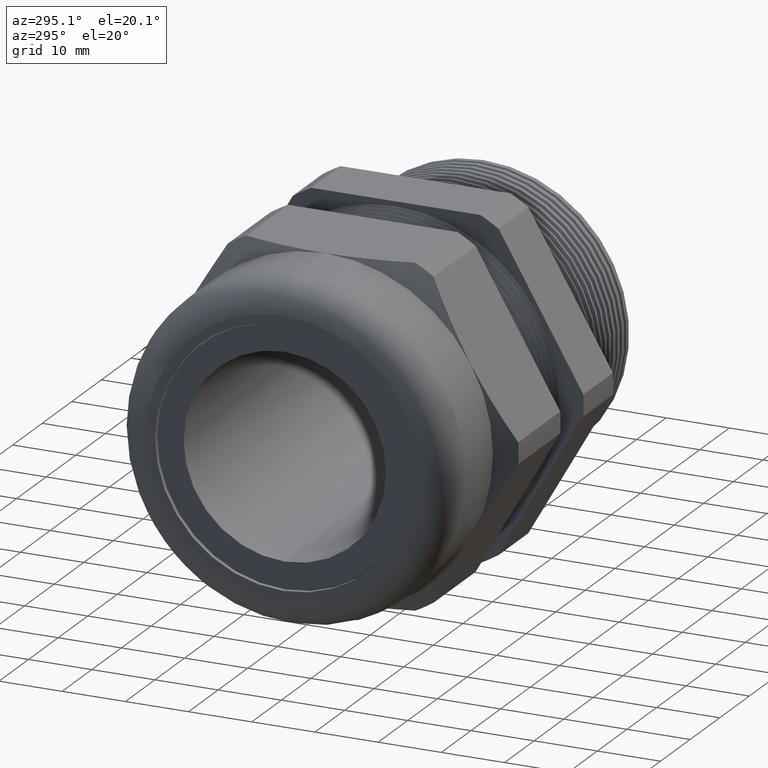
[diagram: clean part render]
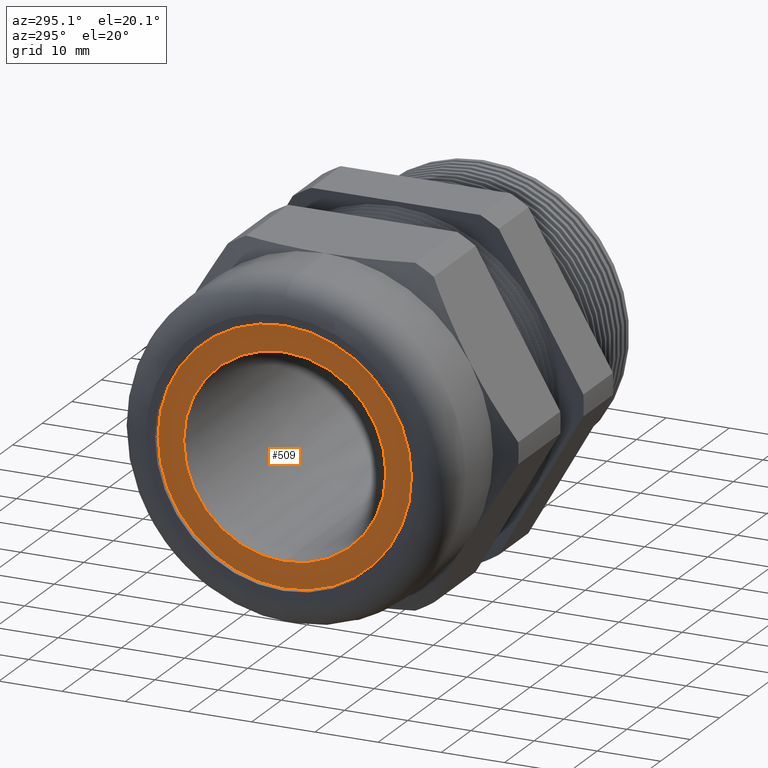
[diagram: same view with one face highlighted and labeled with its STEP entity id]
A machine part, auxiliary view. The second image highlights one B-rep face of the part: STEP entity #509.
In plain terms, the highlighted planar face has unit normal (-1, 0, 0).
Its self-contained STEP definition (entity closure, byte-faithful):
#353 = EDGE_LOOP ( 'NONE', ( #355, #359 ) ) ;
#355 = ORIENTED_EDGE ( 'NONE', *, *, #357, .T. ) ;
#357 = EDGE_CURVE ( 'NONE', #433, #432, #1970, .T. ) ;
#359 = ORIENTED_EDGE ( 'NONE', *, *, #431, .T. ) ;
#413 = EDGE_CURVE ( 'NONE', #429, #4475, #2079, .T. ) ;
#423 = ORIENTED_EDGE ( 'NONE', *, *, #413, .T. ) ;
#426 = ORIENTED_EDGE ( 'NONE', *, *, #428, .T. ) ;
#428 = EDGE_CURVE ( 'NONE', #4475, #429, #2062, .T. ) ;
#429 = VERTEX_POINT ( 'NONE', #2053 ) ;
#431 = EDGE_CURVE ( 'NONE', #432, #433, #2117, .T. ) ;
#432 = VERTEX_POINT ( 'NONE', #2112 ) ;
#433 = VERTEX_POINT ( 'NONE', #2111 ) ;
#509 = ADVANCED_FACE ( 'NONE', ( #2188, #2187 ), #2186, .T. ) ;
#510 = EDGE_LOOP ( 'NONE', ( #423, #426 ) ) ;
#1967 = DIRECTION ( 'NONE',  ( 0.0000000000000000000, 0.0000000000000000000, -1.000000000000000000 ) ) ;
#1968 = DIRECTION ( 'NONE',  ( 1.000000000000000000, 0.0000000000000000000, 0.0000000000000000000 ) ) ;
#1969 = AXIS2_PLACEMENT_3D ( 'NONE', #1974, #1968, #1967 ) ;
#1970 = CIRCLE ( 'NONE', #1969, 0.6300000000000000000 ) ;
#1974 = CARTESIAN_POINT ( 'NONE',  ( -1.869999999999999400, 0.0000000000000000000, 0.0000000000000000000 ) ) ;
#2053 = CARTESIAN_POINT ( 'NONE',  ( -1.869999999999999700, 0.0000000000000000000, 0.7889999999999998100 ) ) ;
#2054 = DIRECTION ( 'NONE',  ( 0.0000000000000000000, 0.0000000000000000000, 1.000000000000000000 ) ) ;
#2055 = DIRECTION ( 'NONE',  ( -1.000000000000000000, 0.0000000000000000000, 0.0000000000000000000 ) ) ;
#2056 = CARTESIAN_POINT ( 'NONE',  ( -1.869999999999999700, 0.0000000000000000000, 0.0000000000000000000 ) ) ;
#2057 = AXIS2_PLACEMENT_3D ( 'NONE', #2056, #2055, #2054 ) ;
#2062 = CIRCLE ( 'NONE', #2057, 0.7889999999999998100 ) ;
#2076 = DIRECTION ( 'NONE',  ( 0.0000000000000000000, 0.0000000000000000000, 1.000000000000000000 ) ) ;
#2077 = DIRECTION ( 'NONE',  ( -1.000000000000000000, 0.0000000000000000000, 0.0000000000000000000 ) ) ;
#2078 = AXIS2_PLACEMENT_3D ( 'NONE', #2083, #2077, #2076 ) ;
#2079 = CIRCLE ( 'NONE', #2078, 0.7889999999999998100 ) ;
#2083 = CARTESIAN_POINT ( 'NONE',  ( -1.869999999999999700, 0.0000000000000000000, 0.0000000000000000000 ) ) ;
#2111 = CARTESIAN_POINT ( 'NONE',  ( -1.869999999999999400, 0.0000000000000000000, -0.6300000000000000000 ) ) ;
#2112 = CARTESIAN_POINT ( 'NONE',  ( -1.869999999999999400, 7.715274834628325400E-017, 0.6300000000000000000 ) ) ;
#2113 = DIRECTION ( 'NONE',  ( 0.0000000000000000000, 0.0000000000000000000, -1.000000000000000000 ) ) ;
#2114 = DIRECTION ( 'NONE',  ( 1.000000000000000000, 0.0000000000000000000, 0.0000000000000000000 ) ) ;
#2115 = CARTESIAN_POINT ( 'NONE',  ( -1.869999999999999400, 0.0000000000000000000, 0.0000000000000000000 ) ) ;
#2116 = AXIS2_PLACEMENT_3D ( 'NONE', #2115, #2114, #2113 ) ;
#2117 = CIRCLE ( 'NONE', #2116, 0.6300000000000000000 ) ;
#2182 = DIRECTION ( 'NONE',  ( 0.0000000000000000000, 0.0000000000000000000, 1.000000000000000000 ) ) ;
#2183 = DIRECTION ( 'NONE',  ( -1.000000000000000000, 0.0000000000000000000, 0.0000000000000000000 ) ) ;
#2184 = CARTESIAN_POINT ( 'NONE',  ( -1.869999999999999700, 0.7989999999999998200, 0.0000000000000000000 ) ) ;
#2185 = AXIS2_PLACEMENT_3D ( 'NONE', #2184, #2183, #2182 ) ;
#2186 = PLANE ( 'NONE',  #2185 ) ;
#2187 = FACE_BOUND ( 'NONE', #353, .T. ) ;
#2188 = FACE_OUTER_BOUND ( 'NONE', #510, .T. ) ;
#4231 = CARTESIAN_POINT ( 'NONE',  ( -1.869999999999999700, 9.723695585229981400E-017, -0.7889999999999998100 ) ) ;
#4475 = VERTEX_POINT ( 'NONE', #4231 ) ;